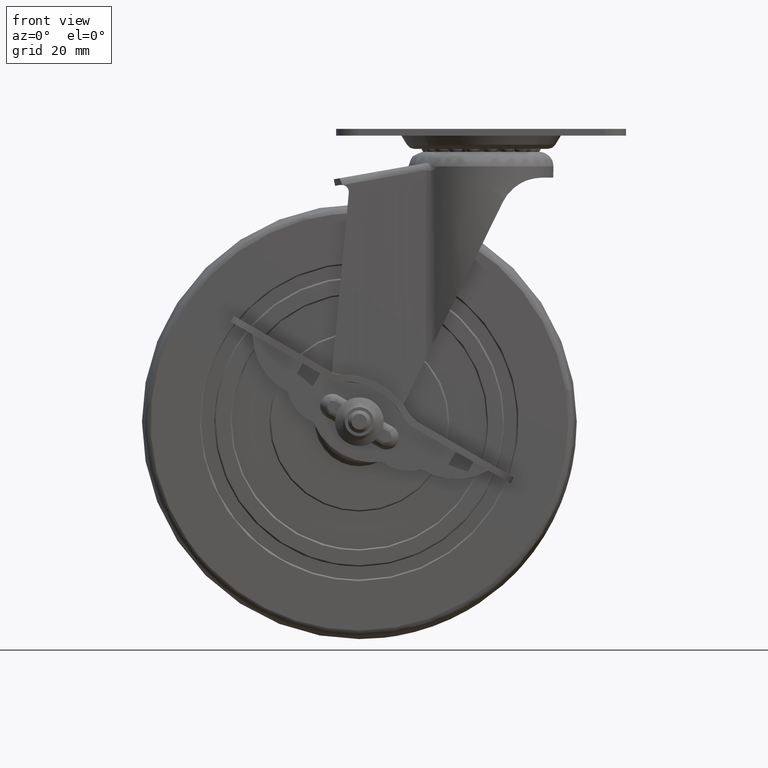
[diagram: clean part render]
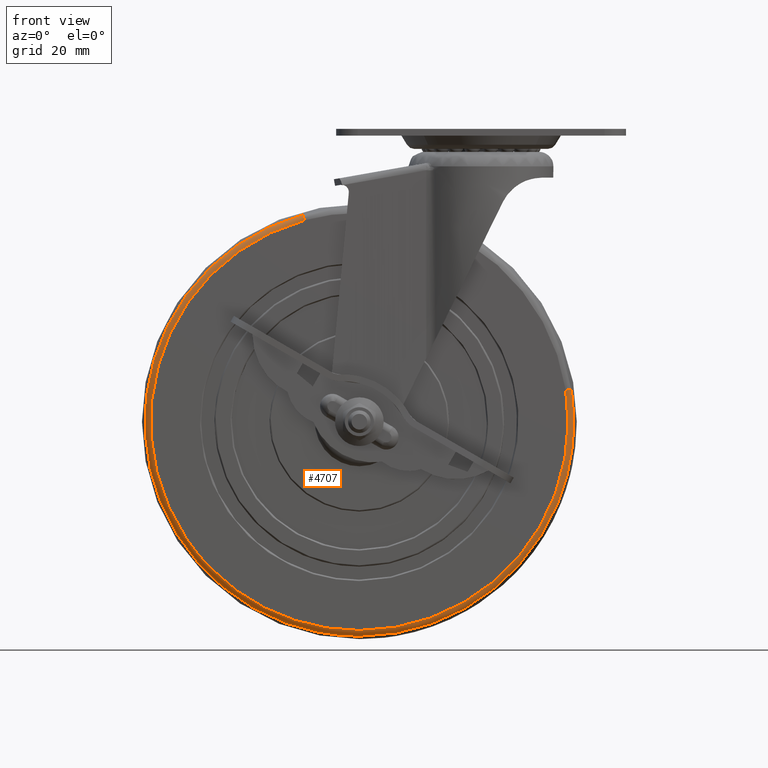
[diagram: same view with one face highlighted and labeled with its STEP entity id]
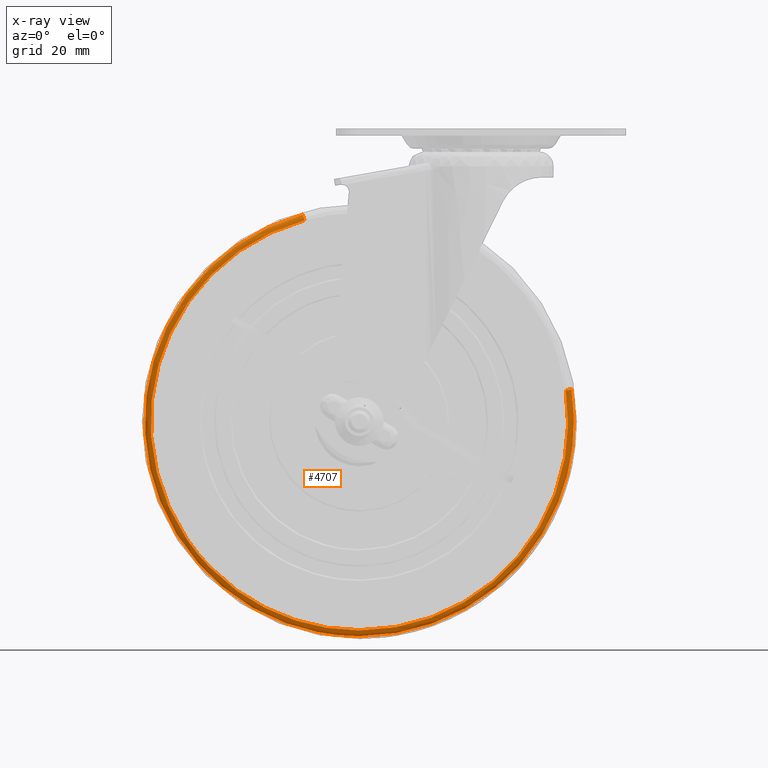
[diagram: x-ray of the same camera — body ghosted, the highlighted face saturated]
A machine part, front view. The second image highlights one B-rep face of the part: STEP entity #4707.
The next image is the same camera in x-ray: the body ghosted, the highlighted face saturated — about 0% of this face is hidden behind the body in this view.
In plain terms, the highlighted face is a freeform B-spline surface patch.
Its self-contained STEP definition (entity closure, byte-faithful):
#4541=CARTESIAN_POINT('',(-19.492165282132301,-11.712069110793577,71.396244393728765));
#4542=CARTESIAN_POINT('',(-83.069928384959965,-11.712069110793577,54.038632978842855));
#4543=CARTESIAN_POINT('',(-73.169368364052289,-11.712069110793577,-11.118082304095195));
#4544=CARTESIAN_POINT('',(-62.051286059957064,-11.712069110793577,-84.287450668147471));
#4545=CARTESIAN_POINT('',(11.118082304095207,-11.712069110793577,-73.169368364052289));
#4546=CARTESIAN_POINT('',(84.287450668147471,-11.712069110793577,-62.051286059957064));
#4547=CARTESIAN_POINT('',(73.169368364052289,-11.712069110793577,11.118082304095207));
#4548=CARTESIAN_POINT('',(-19.438646589457900,-13.617652630477199,71.200215188840104));
#4549=CARTESIAN_POINT('',(-82.841847312212479,-13.617652630477199,53.890261725619879));
#4550=CARTESIAN_POINT('',(-72.968470778690374,-13.617652630477199,-11.087555924837220));
#4551=CARTESIAN_POINT('',(-61.880914853853128,-13.617652630477201,-84.056026703527564));
#4552=CARTESIAN_POINT('',(11.087555924837229,-13.617652630477199,-72.968470778690374));
#4553=CARTESIAN_POINT('',(84.056026703527564,-13.617652630477201,-61.880914853853128));
#4554=CARTESIAN_POINT('',(72.968470778690374,-13.617652630477199,11.087555924837229));
#4555=CARTESIAN_POINT('',(-18.934937188038358,-13.495963439063839,69.355219571029778));
#4556=CARTESIAN_POINT('',(-80.695184625070738,-13.495963439063843,52.493815149402160));
#4557=CARTESIAN_POINT('',(-71.077654740172150,-13.495963439063845,-10.800246510964012));
#4558=CARTESIAN_POINT('',(-60.277408229208113,-13.495963439063843,-81.877901251136166));
#4559=CARTESIAN_POINT('',(10.800246510964024,-13.495963439063845,-71.077654740172150));
#4560=CARTESIAN_POINT('',(81.877901251136166,-13.495963439063843,-60.277408229208135));
#4561=CARTESIAN_POINT('',(71.077654740172150,-13.495963439063845,10.800246510964019));
#4569=(BOUNDED_SURFACE()B_SPLINE_SURFACE(2,2,((#4541,#4548,#4555),(#4542,#4549,#4556),(#4543,#4550,#4557),(#4544,#4551,#4558),(#4545,#4552,#4559),(#4546,#4553,#4560),(#4547,#4554,#4561)),.UNSPECIFIED.,.F.,.F.,.U.)B_SPLINE_SURFACE_WITH_KNOTS((3,2,2,3),(3,3),(0.0,112.812728230897700,235.435258916656010,358.057789602414290),(0.0,3.214108942858566),.UNSPECIFIED.)GEOMETRIC_REPRESENTATION_ITEM()RATIONAL_B_SPLINE_SURFACE(((0.876337989154647,0.633565594006518,0.878599020576604),(0.669043472285001,0.483697991163575,0.670769665069307),(0.915822659034580,0.662111804071840,0.918185564482756),(0.647584412567647,0.468183746562857,0.649255239033355),(0.915822659034580,0.662111804071840,0.918185564482756),(0.647584412567647,0.468183746562857,0.649255239033355),(0.915822659034580,0.662111804071840,0.918185564482756)))REPRESENTATION_ITEM('')SURFACE());
#4570=CARTESIAN_POINT('',(-18.968385858765519,-13.499999668968361,69.477735947452160));
#4571=VERTEX_POINT('',#4570);
#4572=CARTESIAN_POINT('',(0.0,-13.499999668968760,-72.020521048105110));
#4573=VERTEX_POINT('',#4572);
#4574=CARTESIAN_POINT('',(-18.968385858765519,-13.499999668968361,69.477735947452160));
#4575=CARTESIAN_POINT('',(-22.219569722237289,-13.499999668968391,68.590241003439175));
#4576=CARTESIAN_POINT('',(-28.852210605582279,-13.499999668968320,66.268426327156533));
#4577=CARTESIAN_POINT('',(-36.995058258708738,-13.499999668968460,62.001176300885042));
#4578=CARTESIAN_POINT('',(-43.772717105533310,-13.499999668968520,57.329696952429877));
#4579=CARTESIAN_POINT('',(-50.179596215745029,-13.499999668968419,51.945642883200598));
#4580=CARTESIAN_POINT('',(-56.306947474495949,-13.499999668968609,45.271816043664309));
#4581=CARTESIAN_POINT('',(-62.529923981846110,-13.499999668968529,36.275929382648187));
#4582=CARTESIAN_POINT('',(-66.884250938038505,-13.499999668968680,27.406481558628460));
#4583=CARTESIAN_POINT('',(-69.894000952583085,-13.499999668968570,18.020661771991161));
#4584=CARTESIAN_POINT('',(-71.413539342076135,-13.499999668968760,10.337032905179040));
#4585=CARTESIAN_POINT('',(-72.153544435160484,-13.499999668969130,2.002170028525971));
#4586=CARTESIAN_POINT('',(-71.956136151746989,-13.499999668967440,-5.426352754150087));
#4587=CARTESIAN_POINT('',(-70.916394669885420,-13.499999668969711,-13.181795939293750));
#4588=CARTESIAN_POINT('',(-69.018609660220193,-13.499999668968380,-21.335060569970491));
#4589=CARTESIAN_POINT('',(-65.749335619640675,-13.499999668968570,-29.929520383550081));
#4590=CARTESIAN_POINT('',(-60.780804819261959,-13.499999668969879,-39.062070175141102));
#4591=CARTESIAN_POINT('',(-55.158442467937000,-13.499999668966330,-46.679690803238550));
#4592=CARTESIAN_POINT('',(-49.197841673759783,-13.499999668969471,-52.750315279658992));
#4593=CARTESIAN_POINT('',(-43.518942852046877,-13.499999668968551,-57.524965285531323));
#4594=CARTESIAN_POINT('',(-36.626197957152563,-13.499999668968981,-62.277918869084843));
#4595=CARTESIAN_POINT('',(-27.324492469786851,-13.499999668968760,-66.957138972239818));
#4596=CARTESIAN_POINT('',(-17.404841905654731,-13.499999668968830,-70.121943490030247));
#4597=CARTESIAN_POINT('',(-8.223214378737348,-13.499999668968769,-71.709800187338772));
#4598=CARTESIAN_POINT('',(-2.696144781257069,-13.499999668968769,-72.020576091376100));
#4599=CARTESIAN_POINT('',(0.0,-13.499999668968760,-72.020521048105110));
#4600=B_SPLINE_CURVE_WITH_KNOTS('',3,(#4574,#4575,#4576,#4577,#4578,#4579,#4580,#4581,#4582,#4583,#4584,#4585,#4586,#4587,#4588,#4589,#4590,#4591,#4592,#4593,#4594,#4595,#4596,#4597,#4598,#4599),.UNSPECIFIED.,.F.,.U.,(4,1,1,1,1,1,1,1,1,1,1,1,1,1,1,1,1,1,1,1,1,1,1,4),(0.000000266489081,10.110427180368671,21.029995528446729,27.500676156738908,34.780317542781091,46.104207785228617,54.597124826097229,67.538712684700045,75.627126404408642,84.120107313608486,90.995321718913374,100.701478426231110,106.363100266978710,114.451672638478700,125.775555359793000,133.863939158773290,145.592258065324100,154.085171628867500,159.342690286424610,167.835602672406510,179.159409522408710,190.483312146109400,198.976148740229600,207.064589798685600),.UNSPECIFIED.);
#4601=EDGE_CURVE('',#4571,#4573,#4600,.T.);
#4602=ORIENTED_EDGE('',*,*,#4601,.F.);
#4603=CARTESIAN_POINT('',(-19.487547503558339,-11.838235097691090,71.379330313349016));
#4604=VERTEX_POINT('',#4603);
#4605=CARTESIAN_POINT('',(-19.487547503558339,-11.838235097691090,71.379330313349016));
#4606=CARTESIAN_POINT('',(-19.477191460389580,-12.068396492045190,71.341398017067576));
#4607=CARTESIAN_POINT('',(-19.437520024719849,-12.486581382807509,71.196088787674640));
#4608=CARTESIAN_POINT('',(-19.321160869179739,-13.040827255489891,70.769886434705043));
#4609=CARTESIAN_POINT('',(-19.160538977291040,-13.412221358997421,70.181557755710202));
#4610=CARTESIAN_POINT('',(-19.029879148349622,-13.500149842485550,69.702974645651310));
#4611=CARTESIAN_POINT('',(-18.968385858765519,-13.499999668968361,69.477735947452160));
#4612=B_SPLINE_CURVE_WITH_KNOTS('',3,(#4605,#4606,#4607,#4608,#4609,#4610,#4611),.UNSPECIFIED.,.F.,.U.,(4,1,1,1,4),(0.000000358768141,0.700486672397076,1.313427681088809,2.101459299654450,2.801945613282800),.UNSPECIFIED.);
#4613=EDGE_CURVE('',#4604,#4571,#4612,.T.);
#4614=ORIENTED_EDGE('',*,*,#4613,.F.);
#4615=CARTESIAN_POINT('',(0.0,-11.838243337138930,-73.991709608405003));
#4616=VERTEX_POINT('',#4615);
#4617=CARTESIAN_POINT('',(-19.487547503558339,-11.838235097691090,71.379330313349016));
#4618=CARTESIAN_POINT('',(-23.896737798588259,-11.838235166002530,70.176136660270132));
#4619=CARTESIAN_POINT('',(-30.146726861632079,-11.838235299225159,67.828588419312410));
#4620=CARTESIAN_POINT('',(-38.568235246607301,-11.838235556476770,63.293863596027833));
#4621=CARTESIAN_POINT('',(-44.427826292857198,-11.838235781433170,59.327751358990682));
#4622=CARTESIAN_POINT('',(-51.767758078612957,-11.838236129245731,53.194841050413622));
#4623=CARTESIAN_POINT('',(-58.332367291997443,-11.838236536986470,46.004327069143777));
#4624=CARTESIAN_POINT('',(-63.929858346706460,-11.838237015675499,37.561676131730607));
#4625=CARTESIAN_POINT('',(-68.164339717441550,-11.838237484553000,29.291529592780410));
#4626=CARTESIAN_POINT('',(-71.705854152991648,-11.838238039941370,19.494811143105160));
#4627=CARTESIAN_POINT('',(-73.848416849497426,-11.838238682513399,8.159374740312394));
#4628=CARTESIAN_POINT('',(-74.139819842715951,-11.838239241134911,-1.695852012274500));
#4629=CARTESIAN_POINT('',(-73.405562239520023,-11.838239726486300,-10.258838192803880));
#4630=CARTESIAN_POINT('',(-71.989919997901367,-11.838240151455450,-17.756897849762758));
#4631=CARTESIAN_POINT('',(-69.131174318935720,-11.838240677291120,-27.035095818628680));
#4632=CARTESIAN_POINT('',(-65.076799964035786,-11.838241169813170,-35.726098773394433));
#4633=CARTESIAN_POINT('',(-59.478016863470692,-11.838241657351070,-44.329865673384653));
#4634=CARTESIAN_POINT('',(-53.573116494349051,-11.838242054245271,-51.334626153979947));
#4635=CARTESIAN_POINT('',(-45.998778509477312,-11.838242447046150,-58.267882850940516));
#4636=CARTESIAN_POINT('',(-38.091810702182883,-11.838242754020220,-63.687143026033930));
#4637=CARTESIAN_POINT('',(-29.059761215184089,-11.838243013125069,-68.262372078820491));
#4638=CARTESIAN_POINT('',(-20.950244989669471,-11.838243176831339,-71.154147628154504));
#4639=CARTESIAN_POINT('',(-10.941130989318170,-11.838243304522400,-73.411383497807364));
#4640=CARTESIAN_POINT('',(-4.293426899508945,-11.838243337270111,-73.992102408357709));
#4641=CARTESIAN_POINT('',(0.0,-11.838243337138930,-73.991709608405003));
#4642=B_SPLINE_CURVE_WITH_KNOTS('',3,(#4617,#4618,#4619,#4620,#4621,#4622,#4623,#4624,#4625,#4626,#4627,#4628,#4629,#4630,#4631,#4632,#4633,#4634,#4635,#4636,#4637,#4638,#4639,#4640,#4641),.UNSPECIFIED.,.F.,.U.,(4,1,1,1,1,1,1,1,1,1,1,1,1,1,1,1,1,1,1,1,1,1,4),(0.000000250607712,13.711091170988940,19.943497955839380,28.668937399906639,34.901307343021223,48.612564684664790,57.753403794075702,65.232256936373659,76.450577144994185,88.915419400437131,99.718111522554779,105.950558421911100,114.675778979104710,122.570023578747100,135.034904201162190,143.344688181616700,153.316552039376800,162.457382805827110,174.091212009182190,181.985587423547000,192.788317526290310,199.851708838192790,212.731913147455000),.UNSPECIFIED.);
#4643=EDGE_CURVE('',#4604,#4616,#4642,.T.);
#4644=ORIENTED_EDGE('',*,*,#4643,.T.);
#4645=CARTESIAN_POINT('',(73.496826150517052,-11.838271104324130,-8.543355985599835));
#4646=VERTEX_POINT('',#4645);
#4647=CARTESIAN_POINT('',(0.0,-11.838243337138930,-73.991709608405003));
#4648=CARTESIAN_POINT('',(4.626180938806622,-11.838244311839430,-73.992189530216663));
#4649=CARTESIAN_POINT('',(12.476450854361310,-11.838246104680749,-73.253010889333439));
#4650=CARTESIAN_POINT('',(22.405630446198320,-11.838248678462129,-70.686425022570162));
#4651=CARTESIAN_POINT('',(30.136038048295241,-11.838250864310730,-67.718137241584145));
#4652=CARTESIAN_POINT('',(36.898877975776337,-11.838252932177969,-64.292069983589386));
#4653=CARTESIAN_POINT('',(43.028026531170873,-11.838254967447790,-60.328106792687677));
#4654=CARTESIAN_POINT('',(48.536347076012220,-11.838256943379710,-55.983212474214909));
#4655=CARTESIAN_POINT('',(54.953014799764837,-11.838259436932431,-49.899735425085673));
#4656=CARTESIAN_POINT('',(61.641598242425879,-11.838262412346880,-41.553568805682609));
#4657=CARTESIAN_POINT('',(66.976231996871675,-11.838265334860059,-31.968879738306150));
#4658=CARTESIAN_POINT('',(71.237029265645660,-11.838268267701000,-21.123261237328482));
#4659=CARTESIAN_POINT('',(72.914931862230617,-11.838270041059280,-13.556504482759710));
#4660=CARTESIAN_POINT('',(73.496826150517052,-11.838271104324130,-8.543355985599835));
#4661=B_SPLINE_CURVE_WITH_KNOTS('',3,(#4647,#4648,#4649,#4650,#4651,#4652,#4653,#4654,#4655,#4656,#4657,#4658,#4659,#4660),.UNSPECIFIED.,.F.,.U.,(4,1,1,1,1,1,1,1,1,1,1,4),(0.000000097728787,13.878465267091171,23.551399770560639,30.700950737787860,38.691608170097680,46.261768214162203,52.570187539156812,59.719573707759388,72.757007812074505,84.532749252146473,92.523416473632608,107.663593568183000),.UNSPECIFIED.);
#4662=EDGE_CURVE('',#4616,#4646,#4661,.T.);
#4663=ORIENTED_EDGE('',*,*,#4662,.T.);
#4664=CARTESIAN_POINT('',(73.152029013390361,-11.838266212478739,11.115447590530099));
#4665=VERTEX_POINT('',#4664);
#4666=CARTESIAN_POINT('',(73.496826150517052,-11.838271104324130,-8.543355985599835));
#4667=CARTESIAN_POINT('',(73.852710058778953,-11.838270436403020,-5.482698239325150));
#4668=CARTESIAN_POINT('',(74.203086165183663,-11.838268906360829,1.094184118644038));
#4669=CARTESIAN_POINT('',(73.676825618601868,-11.838267177771931,7.662988546453510));
#4670=CARTESIAN_POINT('',(73.152029013390361,-11.838266212478739,11.115447590530099));
#4671=B_SPLINE_CURVE_WITH_KNOTS('',3,(#4666,#4667,#4668,#4669,#4670),.UNSPECIFIED.,.F.,.U.,(4,1,4),(3.014417E-009,9.243828722474202,19.720154525724890),.UNSPECIFIED.);
#4672=EDGE_CURVE('',#4646,#4665,#4671,.T.);
#4673=ORIENTED_EDGE('',*,*,#4672,.T.);
#4674=CARTESIAN_POINT('',(71.203213841822077,-13.499999668968330,10.819325211668200));
#4675=VERTEX_POINT('',#4674);
#4676=CARTESIAN_POINT('',(73.152029013390361,-11.838266212478739,11.115447590530099));
#4677=CARTESIAN_POINT('',(73.113161272488838,-12.068439358012220,11.109541639009150));
#4678=CARTESIAN_POINT('',(72.984040983252925,-12.430821398975560,11.089921816768509));
#4679=CARTESIAN_POINT('',(72.625170351793201,-12.929234779746560,11.035391440224330));
#4680=CARTESIAN_POINT('',(72.068352681136801,-13.363530298844980,10.950783019874081));
#4681=CARTESIAN_POINT('',(71.520708151505062,-13.500615374239160,10.867568457918040));
#4682=CARTESIAN_POINT('',(71.203213841822077,-13.499999668968330,10.819325211668200));
#4683=B_SPLINE_CURVE_WITH_KNOTS('',3,(#4676,#4677,#4678,#4679,#4680,#4681,#4682),.UNSPECIFIED.,.F.,.U.,(4,1,1,1,4),(0.000000358751928,0.700478778313404,1.138311591727690,1.838724560890236,2.801914036997658),.UNSPECIFIED.);
#4684=EDGE_CURVE('',#4665,#4675,#4683,.T.);
#4685=ORIENTED_EDGE('',*,*,#4684,.T.);
#4686=CARTESIAN_POINT('',(0.0,-13.499999668968760,-72.020521048105110));
#4687=CARTESIAN_POINT('',(4.036136606470317,-13.499999668968760,-72.020862319264651));
#4688=CARTESIAN_POINT('',(10.655256394328310,-13.499999668968830,-71.462555501394036));
#4689=CARTESIAN_POINT('',(19.644952429724299,-13.499999668968790,-69.434041409748417));
#4690=CARTESIAN_POINT('',(27.599998486622219,-13.499999668968879,-66.713590111512630));
#4691=CARTESIAN_POINT('',(34.737411522054643,-13.499999668968851,-63.260726654091762));
#4692=CARTESIAN_POINT('',(41.713390485030338,-13.499999668968769,-58.872122564671074));
#4693=CARTESIAN_POINT('',(49.091195219771272,-13.499999668968879,-53.078076908917069));
#4694=CARTESIAN_POINT('',(56.746280042399732,-13.499999668968600,-44.922163218140767));
#4695=CARTESIAN_POINT('',(62.891463457850378,-13.499999668968920,-35.587239836967598));
#4696=CARTESIAN_POINT('',(67.517093583903872,-13.499999668968311,-25.787311657038678));
#4697=CARTESIAN_POINT('',(70.356680011211822,-13.499999668968711,-16.490341868562940));
#4698=CARTESIAN_POINT('',(71.681011407230784,-13.499999668968471,-8.022613546708463));
#4699=CARTESIAN_POINT('',(72.213285455556360,-13.499999668968330,0.685145311674737));
#4700=CARTESIAN_POINT('',(71.834246387625939,-13.499999668968499,6.669427153471186));
#4701=CARTESIAN_POINT('',(71.203213841822077,-13.499999668968330,10.819325211668200));
#4702=B_SPLINE_CURVE_WITH_KNOTS('',3,(#4686,#4687,#4688,#4689,#4690,#4691,#4692,#4693,#4694,#4695,#4696,#4697,#4698,#4699,#4700,#4701),.UNSPECIFIED.,.F.,.U.,(4,1,1,1,1,1,1,1,1,1,1,1,1,4),(0.000000074039761,12.108354906500111,19.857772265131469,27.607196147378222,37.293964488051870,43.590368460160882,52.308444327473708,65.385409097205667,77.009525373036155,85.727605295643087,97.836067029994410,106.069794535222700,111.397535703178090,123.990242284744200),.UNSPECIFIED.);
#4703=EDGE_CURVE('',#4573,#4675,#4702,.T.);
#4704=ORIENTED_EDGE('',*,*,#4703,.F.);
#4705=EDGE_LOOP('',(#4602,#4614,#4644,#4663,#4673,#4685,#4704));
#4706=FACE_OUTER_BOUND('',#4705,.T.);
#4707=ADVANCED_FACE('',(#4706),#4569,.T.);